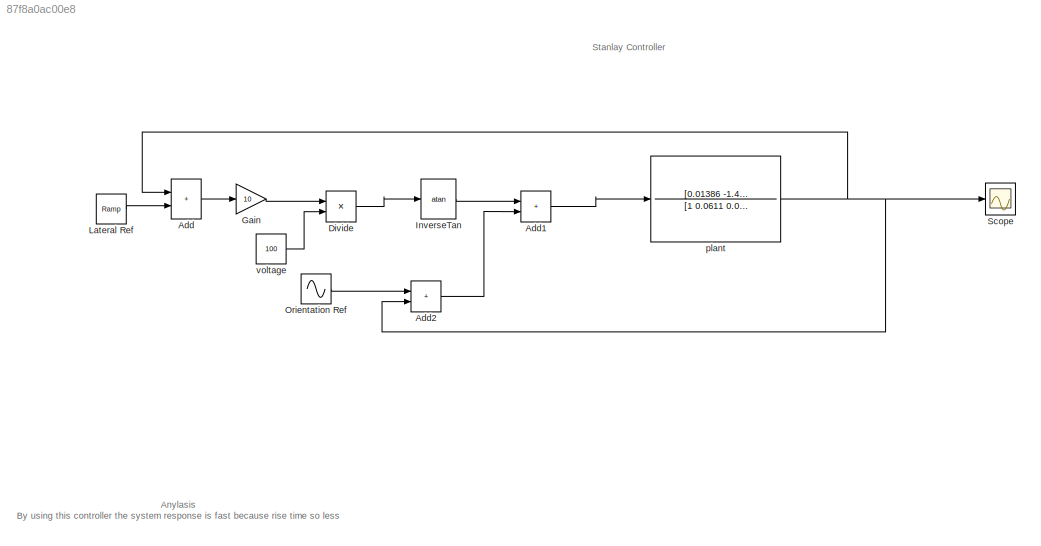
MODEL slx_87f8a0ac00e8
KIND model
CONFIG AbsTol = auto
CONFIG EnableMultiTasking = off
CONFIG FixedStep = auto
CONFIG MaxStep = auto
CONFIG MinStep = auto
CONFIG RelTol = 1e-3
CONFIG SampleTimeConstraint = Unconstrained
CONFIG SolverName = VariableStepAuto
CONFIG StartTime = 0.0
CONFIG StopTime = 10
BLOCK [Sum] Add
  IconShape = rectangular
  Ports = [2, 1]
BLOCK [Sum] Add1
  IconShape = rectangular
  Ports = [2, 1]
BLOCK [Sum] Add2
  IconShape = rectangular
  Ports = [2, 1]
BLOCK [Product] Divide
  Inputs = */
  Ports = [2, 1]
BLOCK [Gain] Gain
  Gain = 10
BLOCK [Trigonometry] InverseTan
  Operator = atan
  Ports = [1, 1]
BLOCK [Reference] Lateral Ref  REF=simulink/Sources/Ramp
  Ports = [0, 1]
  SourceBlock = simulink/Sources/Ramp
  SourceProductBaseCode = SL
  SourceType = Ramp
BLOCK [Sin] Orientation Ref
  Ports = [0, 1]
  SampleTime = 0
BLOCK [Scope] Scope
  Floating = off
  NumInputPorts = 1
  Ports = [1]
  ScopeSpecificationString = Simulink.scopes.TimeScopeBlockCfg('CurrentConfiguration', extmgr.ConfigurationSet(extmgr.Configuration('Core','General UI',true),extmgr.Configuration('Core','Source UI',true),extmgr.Configuration('Sources','WiredSimulink',true),extmgr.Configuration('Visuals','Time Domain',true,'SerializedDisplays',{struct('MinYLimReal','-5.13471','MaxYLimReal','3.15302','YLabelReal','','MinYLimMag','0.00000','MaxY...<+2187ch>
BLOCK [TransferFcn] plant
  Denominator = [1 0.0611 0.02458]
  Numerator = [0.01386 -1.43]
BLOCK [Constant] voltage
  Value = 100
ANNOTATION (root): Anylasis By using this controller the system response is fast because rise time so less
ANNOTATION (root): Stanlay Controller
LINE Add1:1 -> plant:1
LINE Add2:1 -> Add1:2
LINE Add:1 -> Gain:1
LINE Divide:1 -> InverseTan:1
LINE Gain:1 -> Divide:1
LINE InverseTan:1 -> Add1:1
LINE Lateral Ref:1 -> Add:2
LINE Orientation Ref:1 -> Add2:1
NET plant:1 -> Add2:2, Add:1, Scope:1
LINE voltage:1 -> Divide:2
note: NET lines group one-source signal fan-out (src -> all destinations, sorted); 1:1 wires keep LINE
